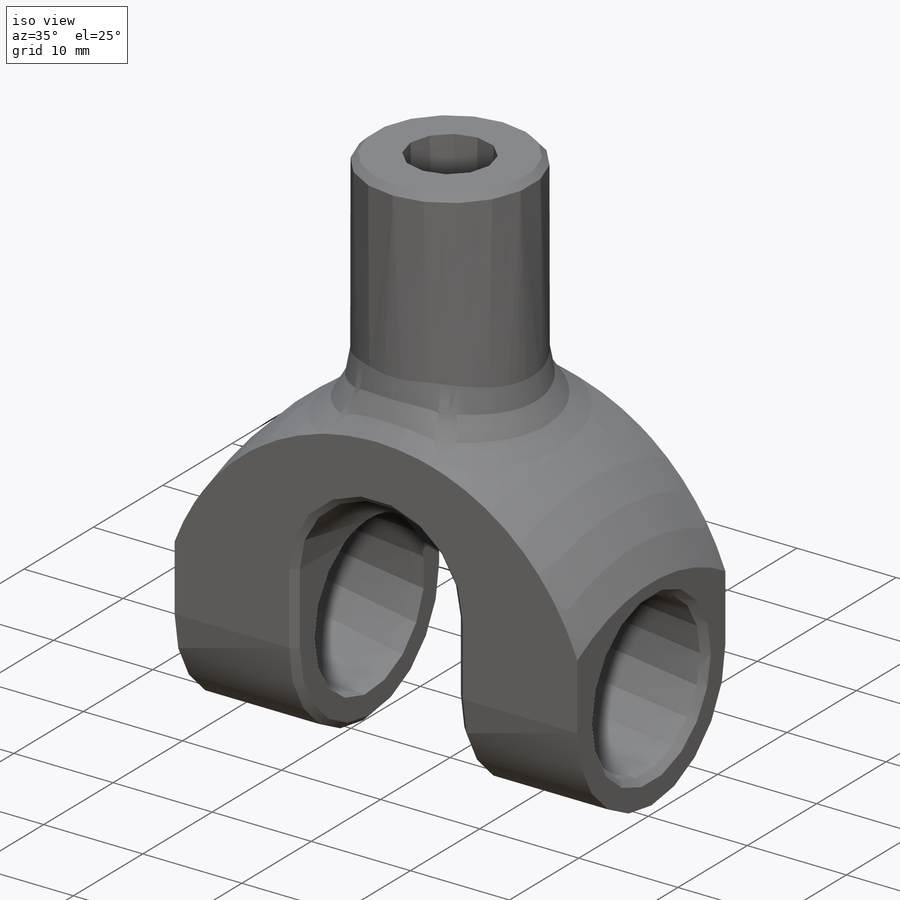
[diagram: iso view]
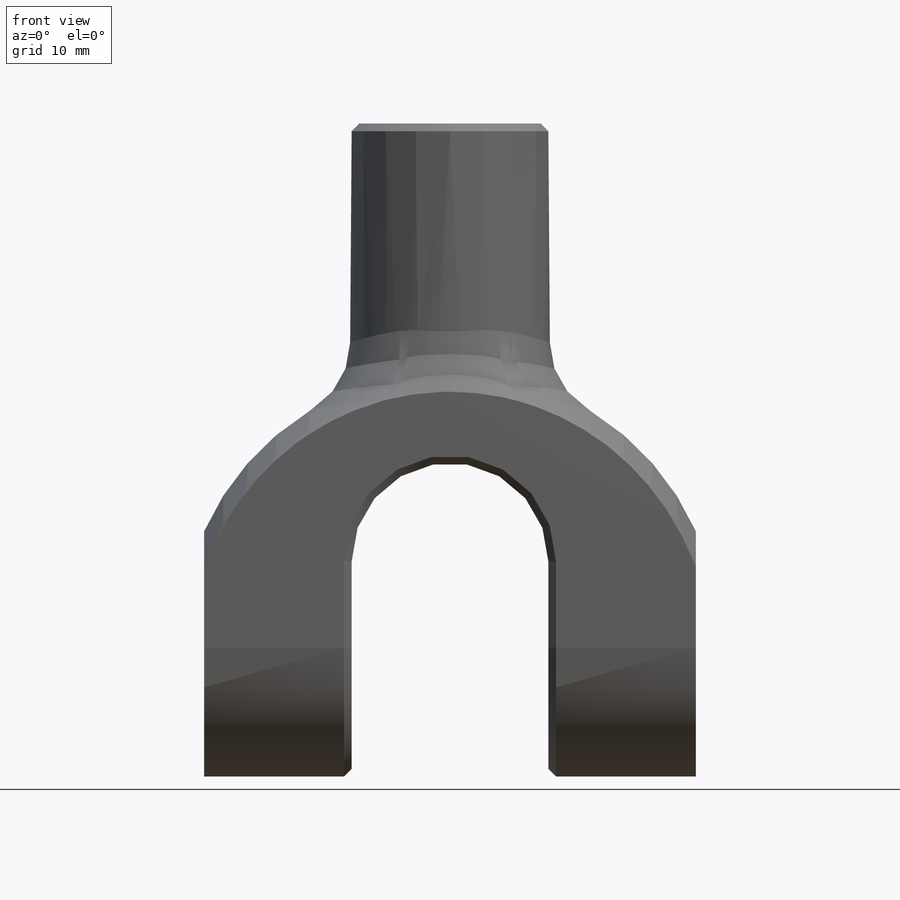
[diagram: front view]
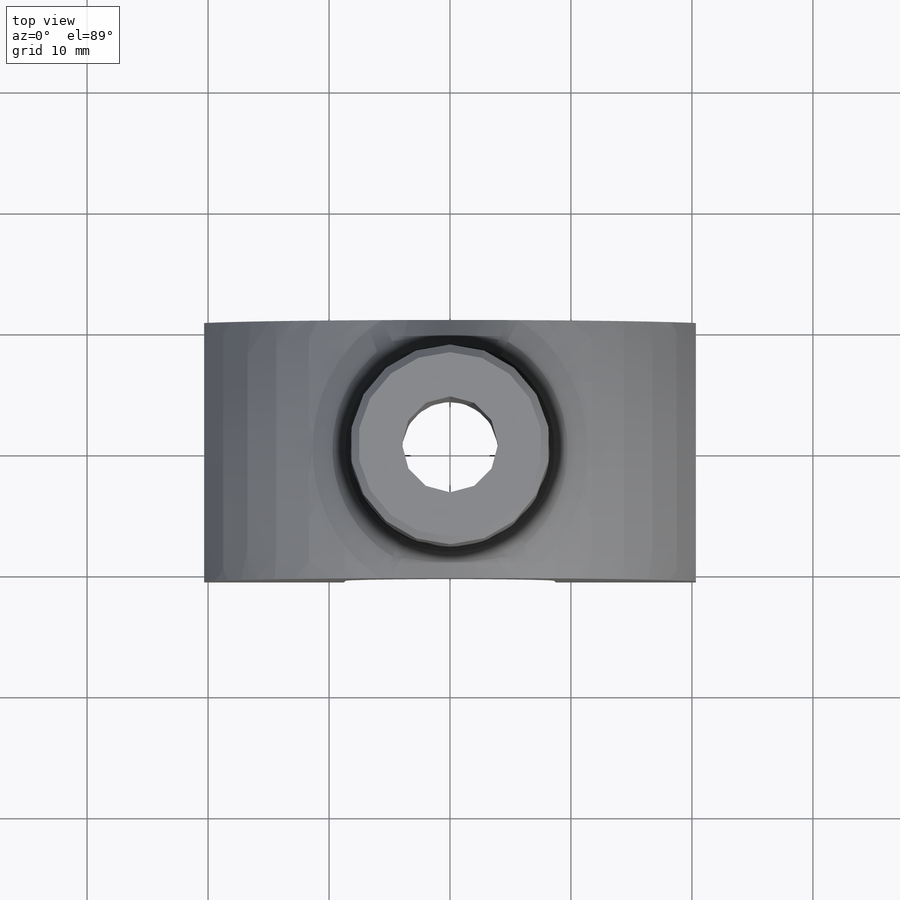
[diagram: top view]
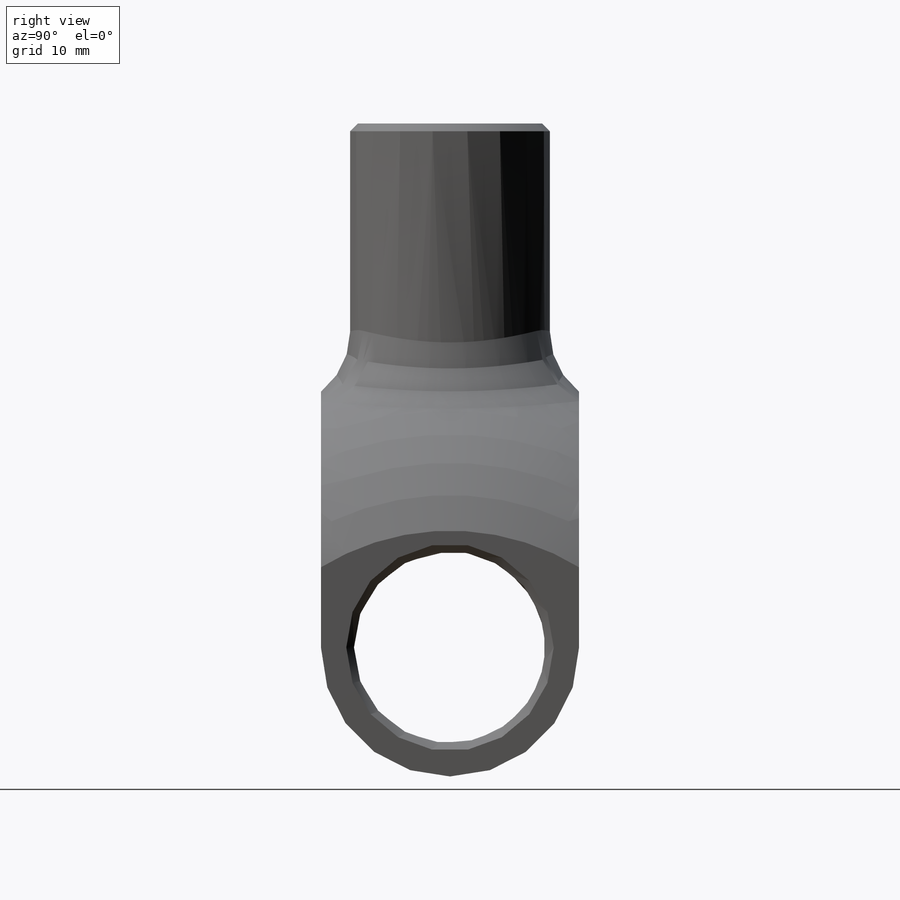
[diagram: right view]
SOLIDWORKS PART (.sldprt)
format: sldprt  version: not decoded by parser v0  size: 306,688 bytes
history: native  units: mm
features: sketch x5, cut_extrude x3, chamfer x2, material x1, revolve x1, plane x1, extrude x1, thread x1, fillet x1 (+11 scaffold rows collapsed)
feature tree (27):
  scaffold x11  (default folders/planes/origin — collapsed)
  material  "6061-T6 (SS)"
  sketch  "Sketch1"  dims[c1.D4=~43.526364mm c1.D3=22.225mm c1.D1=40.64mm c1.D2=20.32mm c2.D3=34.29mm]
  revolve  "Revolve1"  Angle=180deg
  sketch  "Sketch2"  dims[c1.D1=21.336mm c1.D2=15.875mm c2.D1=10.668mm]
  cut_extrude  "Cut-Extrude1"  [1 undecoded]
  sketch  "Sketch3"  dims[D1=12.192mm D2=17.78mm]
  cut_extrude  "Cut-Extrude2"  [1 undecoded]
  plane  "Plane1"  Offset=53.975mm
  sketch  "Sketch4"  dims[D1=16.51mm D2=9.525mm]
  extrude  "Boss-Extrude1"  [1 undecoded]
  sketch  "Sketch5"  dims[D1=7.9375mm]
  cut_extrude  "Cut-Extrude3"  [1 undecoded]
  thread  "Cosmetic Thread2"  Diameter=9.525mm  [1 undecoded]
  fillet  "Fillet1"  Radius=6.35mm
  chamfer  "Chamfer1"  Distance=0.635mm Angle=45deg
  chamfer  "Chamfer2"  Distance=0.635mm Angle=45deg
decode coverage: 10 of 14 modeling features carry decoded parameters
note: ~ marks probable driven/reference dimensions
note: 5 parameter values undecoded
summary: no parameter record found for 4 features
note: suppression state not decoded; provenance and decode notes live in map.json
